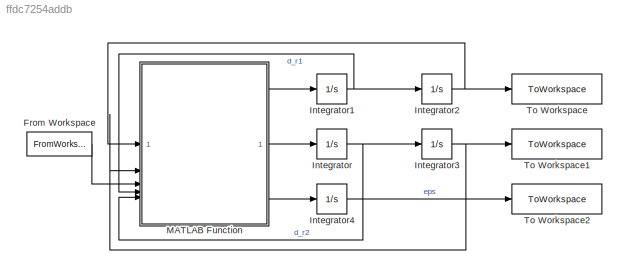
MODEL slx_ffdc7254addb
KIND model
CONFIG AbsTol = auto
CONFIG EnableMultiTasking = off
CONFIG FixedStep = auto
CONFIG MaxStep = auto
CONFIG MinStep = auto
CONFIG RelTol = 1e-3
CONFIG SampleTimeConstraint = Unconstrained
CONFIG SolverName = VariableStepAuto
CONFIG StartTime = 0.0
CONFIG StopTime = 10000
BLOCK [FromWorkspace] From Workspace
  VariableName = u
BLOCK [Integrator] Integrator
  InitialCondition = x0(10:12)
BLOCK [Integrator] Integrator1
  InitialCondition = x0(7:9)
BLOCK [Integrator] Integrator2
  InitialCondition = x0(1:3)
BLOCK [Integrator] Integrator3
  InitialCondition = x0(4:6)
BLOCK [Integrator] Integrator4
  InitialCondition = x0(13)
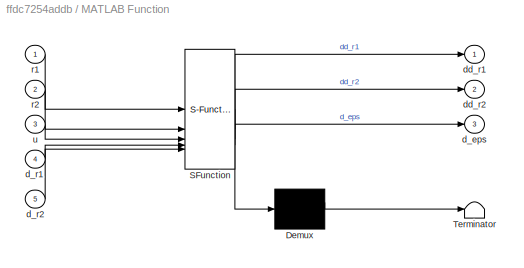
BLOCK [SubSystem] MATLAB Function
  ErrorFcn = Stateflow.Translate.translate
  PermitHierarchicalResolution = ExplicitOnly
  SFBlockType = MATLAB Function
  TreatAsAtomicUnit = on
BLOCK [Demux] MATLAB Function/ Demux 
  Outputs = 1
BLOCK [S-Function] MATLAB Function/ SFunction 
  EnableBusSupport = on
  FunctionName = sf_sfun
  PortCounts = [5 4]
  SFcnIsStateOwnerBlock = off
  SFunctionDeploymentMode = off
  Tag = Stateflow S-Function 2
BLOCK [Terminator] MATLAB Function/ Terminator 
BLOCK [Outport] MATLAB Function/d_eps
  Port = 3
BLOCK [Inport] MATLAB Function/d_r1
  Port = 4
BLOCK [Inport] MATLAB Function/d_r2
  Port = 5
BLOCK [Outport] MATLAB Function/dd_r1
BLOCK [Outport] MATLAB Function/dd_r2
  Port = 2
BLOCK [Inport] MATLAB Function/r1
BLOCK [Inport] MATLAB Function/r2
  Port = 2
BLOCK [Inport] MATLAB Function/u
  Port = 3
BLOCK [ToWorkspace] To Workspace
  FixptAsFi = on
  MaxDataPoints = inf
  SampleTime = -1
  SaveFormat = Timeseries
  VariableName = r1
BLOCK [ToWorkspace] To Workspace1
  FixptAsFi = on
  MaxDataPoints = inf
  SampleTime = -1
  SaveFormat = Timeseries
  VariableName = r2
BLOCK [ToWorkspace] To Workspace2
  FixptAsFi = on
  MaxDataPoints = inf
  SampleTime = -1
  SaveFormat = Timeseries
  VariableName = eps
LINE From Workspace:1 -> MATLAB Function:3
NET Integrator1:1 -> Integrator2:1, MATLAB Function:4
NET Integrator2:1 -> MATLAB Function:1, To Workspace:1
NET Integrator3:1 -> MATLAB Function:2, To Workspace1:1
LINE Integrator4:1 -> To Workspace2:1
NET Integrator:1 -> Integrator3:1, MATLAB Function:5
LINE MATLAB Function:1 -> Integrator1:1
LINE MATLAB Function:2 -> Integrator:1
LINE MATLAB Function:3 -> Integrator4:1
note: NET lines group one-source signal fan-out (src -> all destinations, sorted); 1:1 wires keep LINE
CHART MATLAB Function states=1 transitions=1
  STATE_LABEL 'eML_blk_kernel()'
  STATE_LABEL 'SCRIPT:\nfunction [dd_r1, dd_r2, d_eps] = fcn(r1, r2, u, d_r1, d_r2)\ndd_r1=g(r1,d_r1)+u;\ndd_r2=g(r2,d_r2);\nd_eps=norm(r1-r2)/norm(r2);'
CHART  states=0 transitions=0
